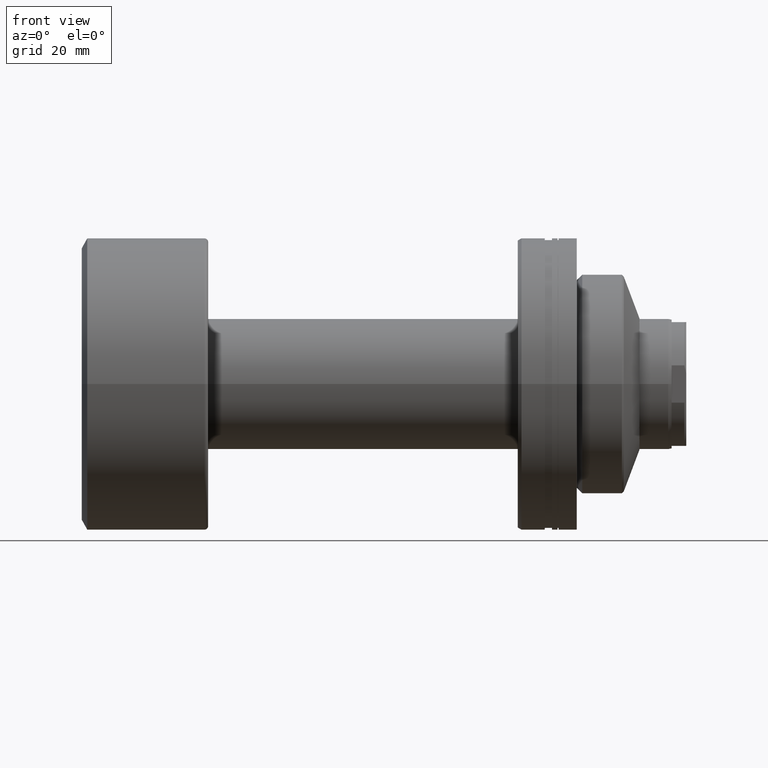
[diagram: clean part render]
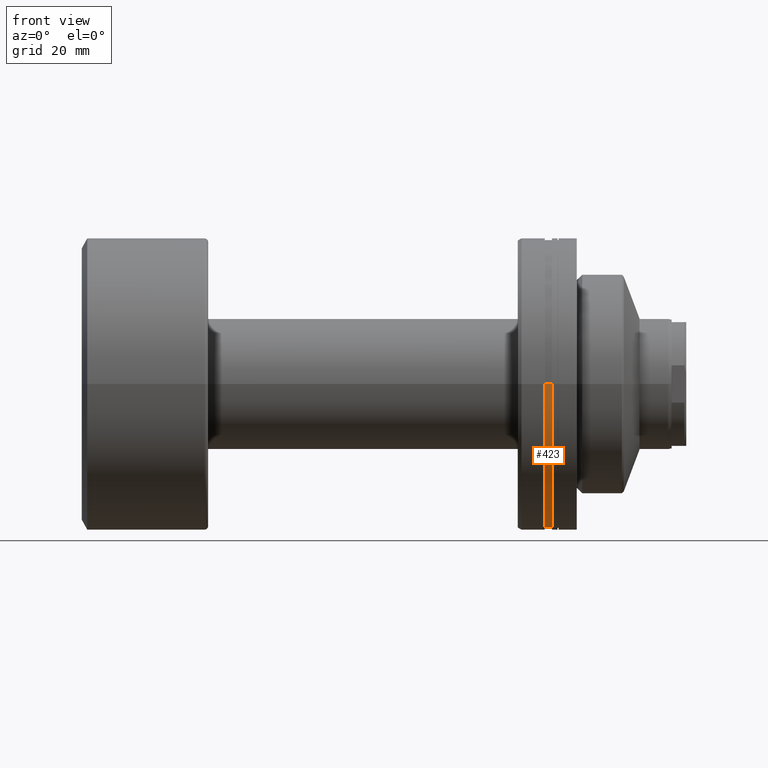
[diagram: same view with one face highlighted and labeled with its STEP entity id]
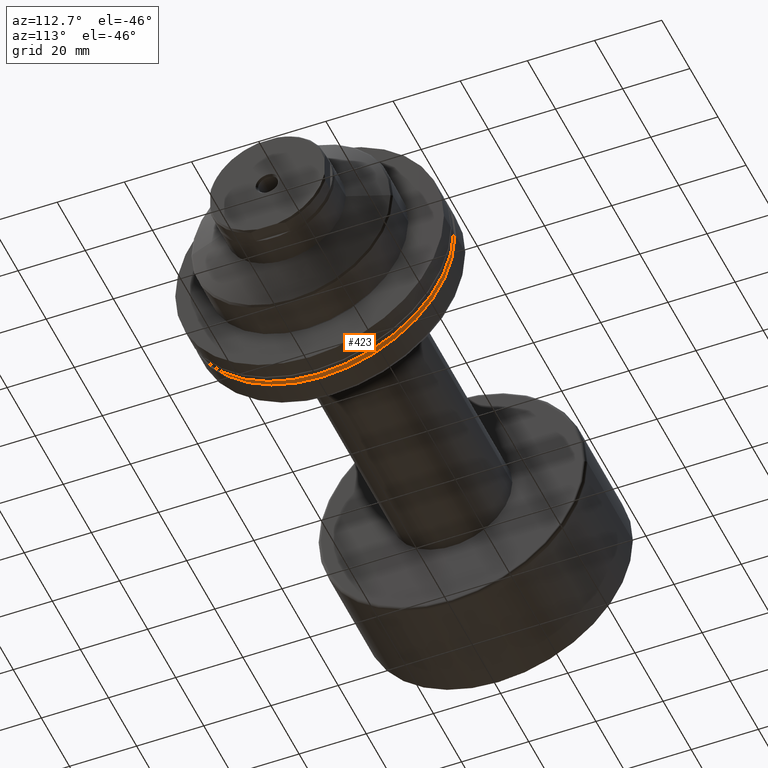
[diagram: same view with one face highlighted and labeled with its STEP entity id]
A machine part, front view. The second image highlights one B-rep face of the part: STEP entity #423.
A second angle (auxiliary view) of the same face is appended — the face is thin or edge-on in the first view.
In plain terms, the highlighted cylindrical surface (partial cylindrical patch) has radius 39.5 mm, axis along (1, 0, 0).
Its self-contained STEP definition (entity closure, byte-faithful):
#38 = DIRECTION ( 'NONE',  ( 1.000000000000000000, 3.738146982434194072E-16, -0.000000000000000000 ) ) ;
#67 = DIRECTION ( 'NONE',  ( 1.000000000000000000, 3.738146982434194072E-16, -0.000000000000000000 ) ) ;
#184 = EDGE_CURVE ( 'NONE', #2034, #965, #2262, .T. ) ;
#230 = DIRECTION ( 'NONE',  ( -3.513364001978342977E-16, 1.000000000000000000, 0.000000000000000000 ) ) ;
#310 = ORIENTED_EDGE ( 'NONE', *, *, #434, .F. ) ;
#369 = LINE ( 'NONE', #1422, #2108 ) ;
#423 = ADVANCED_FACE ( 'NONE', ( #938 ), #1807, .T. ) ;
#427 = CARTESIAN_POINT ( 'NONE',  ( -30.80000000000000071, -39.50000000000000000, 4.837354856632045452E-15 ) ) ;
#434 = EDGE_CURVE ( 'NONE', #2034, #1410, #369, .T. ) ;
#465 = CARTESIAN_POINT ( 'NONE',  ( -32.80878161770237966, -39.50000000000000711, 4.837354856632046241E-15 ) ) ;
#551 = LINE ( 'NONE', #1647, #1482 ) ;
#580 = CARTESIAN_POINT ( 'NONE',  ( -32.80878161770240808, 39.50000000000000711, 0.000000000000000000 ) ) ;
#686 = ORIENTED_EDGE ( 'NONE', *, *, #1277, .F. ) ;
#790 = CARTESIAN_POINT ( 'NONE',  ( -30.28002276692732408, 0.000000000000000000, 0.000000000000000000 ) ) ;
#938 = FACE_OUTER_BOUND ( 'NONE', #1381, .T. ) ;
#965 = VERTEX_POINT ( 'NONE', #580 ) ;
#974 = DIRECTION ( 'NONE',  ( -3.513364001978342977E-16, 1.000000000000000000, 0.000000000000000000 ) ) ;
#1000 = AXIS2_PLACEMENT_3D ( 'NONE', #1613, #1003, #974 ) ;
#1003 = DIRECTION ( 'NONE',  ( 1.000000000000000000, 3.738146982434194072E-16, -0.000000000000000000 ) ) ;
#1054 = CARTESIAN_POINT ( 'NONE',  ( -30.80000000000002913, 39.50000000000000000, 0.000000000000000000 ) ) ;
#1235 = AXIS2_PLACEMENT_3D ( 'NONE', #1847, #2240, #2084 ) ;
#1263 = VERTEX_POINT ( 'NONE', #1054 ) ;
#1277 = EDGE_CURVE ( 'NONE', #1410, #1263, #2076, .T. ) ;
#1381 = EDGE_LOOP ( 'NONE', ( #310, #1576, #1836, #686 ) ) ;
#1410 = VERTEX_POINT ( 'NONE', #427 ) ;
#1422 = CARTESIAN_POINT ( 'NONE',  ( -30.28002276692730987, -39.50000000000000711, 4.837354856632046241E-15 ) ) ;
#1482 = VECTOR ( 'NONE', #38, 1000.000000000000000 ) ;
#1576 = ORIENTED_EDGE ( 'NONE', *, *, #184, .T. ) ;
#1613 = CARTESIAN_POINT ( 'NONE',  ( -32.80878161770239387, -9.452872267328581409E-16, 0.000000000000000000 ) ) ;
#1641 = EDGE_CURVE ( 'NONE', #965, #1263, #551, .T. ) ;
#1647 = CARTESIAN_POINT ( 'NONE',  ( -30.28002276692733830, 39.50000000000000711, 0.000000000000000000 ) ) ;
#1744 = AXIS2_PLACEMENT_3D ( 'NONE', #790, #67, #230 ) ;
#1807 = CYLINDRICAL_SURFACE ( 'NONE', #1744, 39.50000000000000711 ) ;
#1836 = ORIENTED_EDGE ( 'NONE', *, *, #1641, .T. ) ;
#1847 = CARTESIAN_POINT ( 'NONE',  ( -30.80000000000001492, -1.943751324745164439E-16, 0.000000000000000000 ) ) ;
#2027 = DIRECTION ( 'NONE',  ( 1.000000000000000000, 3.738146982434194072E-16, -0.000000000000000000 ) ) ;
#2034 = VERTEX_POINT ( 'NONE', #465 ) ;
#2076 = CIRCLE ( 'NONE', #1235, 39.50000000000000000 ) ;
#2084 = DIRECTION ( 'NONE',  ( -3.513364001978343470E-16, 1.000000000000000000, 0.000000000000000000 ) ) ;
#2108 = VECTOR ( 'NONE', #2027, 1000.000000000000000 ) ;
#2240 = DIRECTION ( 'NONE',  ( 1.000000000000000000, 3.738146982434194072E-16, -0.000000000000000000 ) ) ;
#2262 = CIRCLE ( 'NONE', #1000, 39.50000000000000711 ) ;